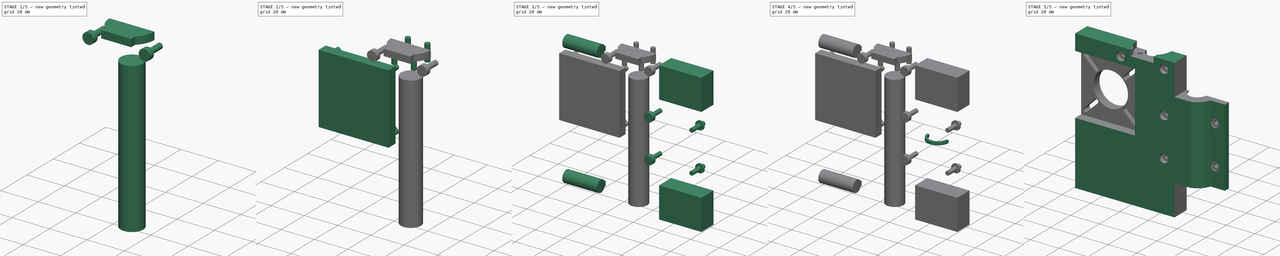
[diagram: build sequence overview — one tinted view per stage of 5, left to right]
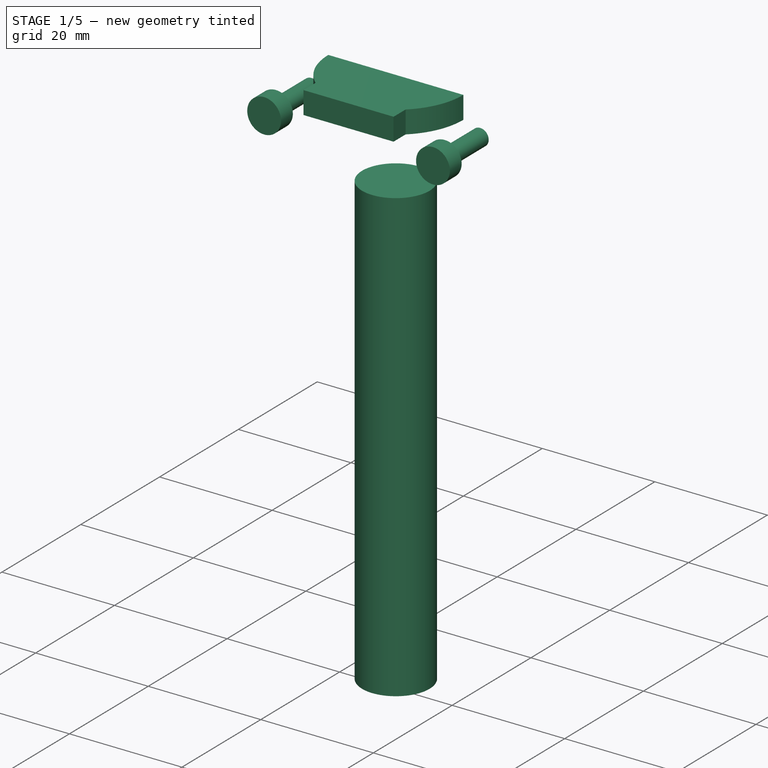
[diagram: stage 1 of 5 — iso view after this stage's code; geometry added in this stage tinted green]
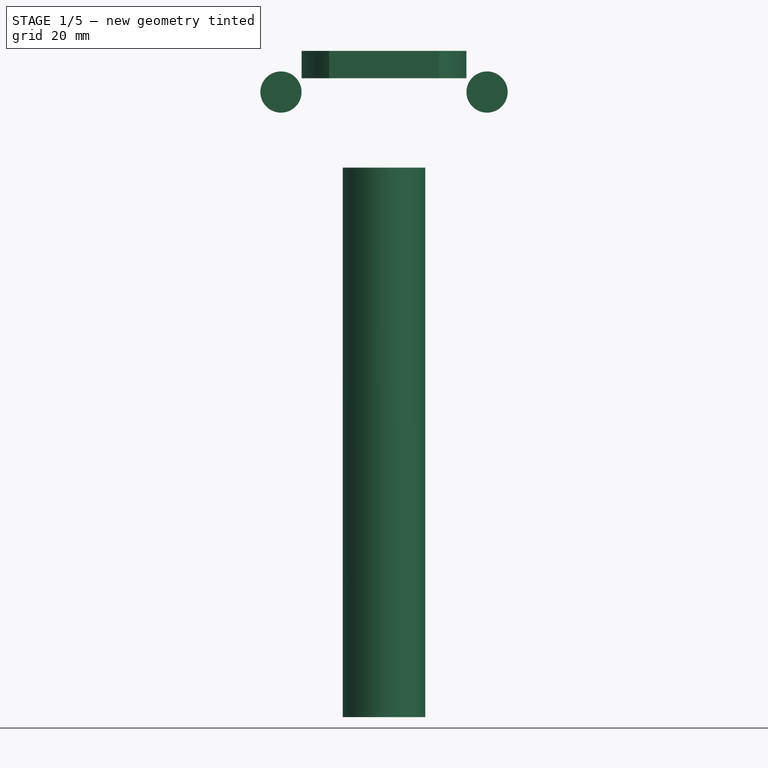
[diagram: stage 1 of 5 — front view after this stage's code; geometry added in this stage tinted green]
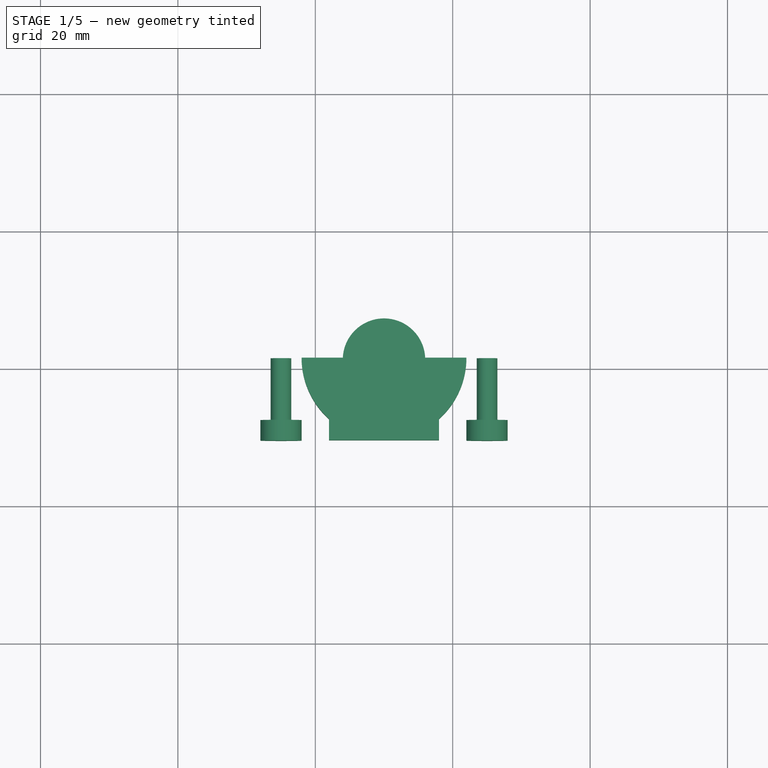
[diagram: stage 1 of 5 — top view after this stage's code; geometry added in this stage tinted green]
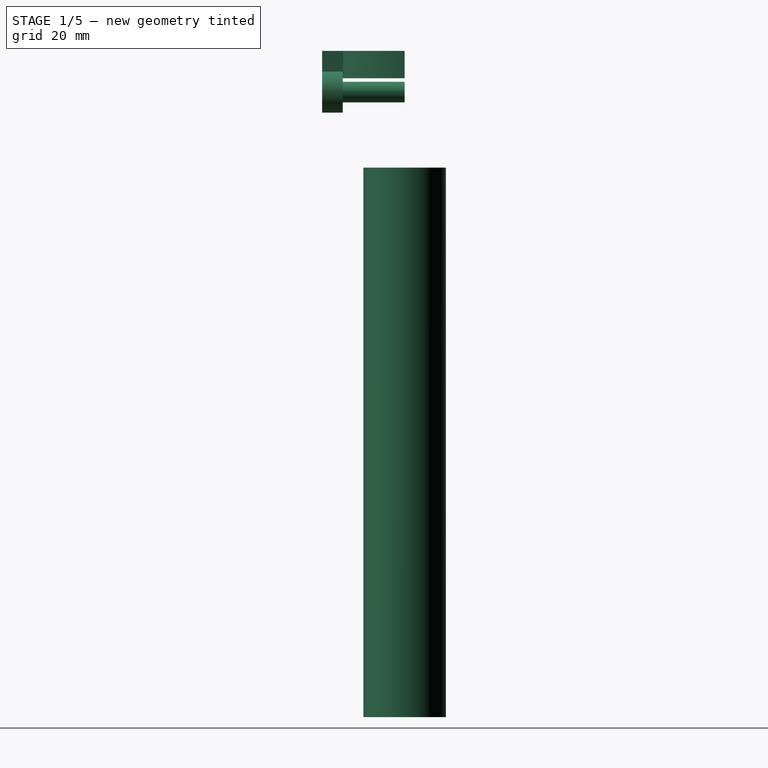
[diagram: stage 1 of 5 — right view after this stage's code; geometry added in this stage tinted green]
FCSTD DOCUMENT  (FreeCAD 0.16R6707 (Git))
Label: RightShoulder
License: All rights reserved
LicenseURL: http://en.wikipedia.org/wiki/All_rights_reserved
objects: Sketcher::SketchObject×15, PartDesign::Pad×15, Part::MultiFuse×2, Part::Cut×1
note: 48 computed .brp shape members not serialized (recipe doc carries the construction recipe); baked Part::Feature solids carry a one-line shape summary decoded from their .brp

FEATURE [Sketcher::SketchObject] Sketch015
  Placement = pos=(0,0,0) rot=(1,0,0;1.5708rad)
  sketch-geometry (2):
    g0: Circle CenterX=-45 CenterY=91 CenterZ=0 NormalX=0 NormalY=0 NormalZ=1 Radius=1.5
    g1: Circle CenterX=-15 CenterY=91 CenterZ=0 NormalX=0 NormalY=0 NormalZ=1 Radius=1.5
  constraints (6):
    c: Radius(g1) = 1.5
    c: Equal(g1,g0)
    c: DistanceX(g1,g-1) = 15
    c: DistanceX(g0,g1) = 30
    c: DistanceY(g-1,g1) = 91
    c: DistanceY(g0,g1) = 0
FEATURE [PartDesign::Pad] Pad012  label="LeadNutMount001"
  Length = 12
  Length2 = 100
  Placement = pos=(0,0,0) rot=(1,0,0;1.5708rad)
  Sketch = -> Sketch015
  Type = 0
FEATURE [Sketcher::SketchObject] Sketch016
  Placement = pos=(0,-12,0) rot=(1,0,0;1.5708rad)
  sketch-geometry (2):
    g0: Circle CenterX=-45 CenterY=91 CenterZ=0 NormalX=0 NormalY=0 NormalZ=1 Radius=3
    g1: Circle CenterX=-15 CenterY=91 CenterZ=0 NormalX=0 NormalY=0 NormalZ=1 Radius=3
  constraints (6):
    c: Radius(g0) = 3
    c: Equal(g0,g1)
    c: DistanceX(g0,g1) = 30
    c: DistanceX(g1,g-1) = 15
    c: DistanceY(g-1,g0) = 91
    c: DistanceY(g1,g0) = 0
FEATURE [PartDesign::Pad] Pad013  label="LeadNutFlush001"
  Length = 3
  Length2 = 100
  Placement = pos=(0,-12,0) rot=(1,0,0;1.5708rad)
  Reversed = true
  Sketch = -> Sketch016
  Type = 0
FEATURE [Sketcher::SketchObject] Sketch017
  sketch-geometry (1):
    g0: Circle CenterX=-30 CenterY=0 CenterZ=0 NormalX=0 NormalY=0 NormalZ=1 Radius=6
  constraints (3):
    c: DistanceX(g0,g-1) = 30
    c: PointOnObject(g0,g-1)
    c: Radius(g0) = 6
FEATURE [PartDesign::Pad] Pad014  label="LeadScrewTol"
  Length = 80
  Length2 = 100
  Sketch = -> Sketch017
  Type = 0
FEATURE [PartDesign::Pad] Pad015  label="LeadNutFlush"
  Length = 4
  Length2 = 100
  Placement = pos=(0,0,97) rot=(0,0,1;0rad)
  Reversed = true
  Sketch = -> Sketch013
  Type = 0
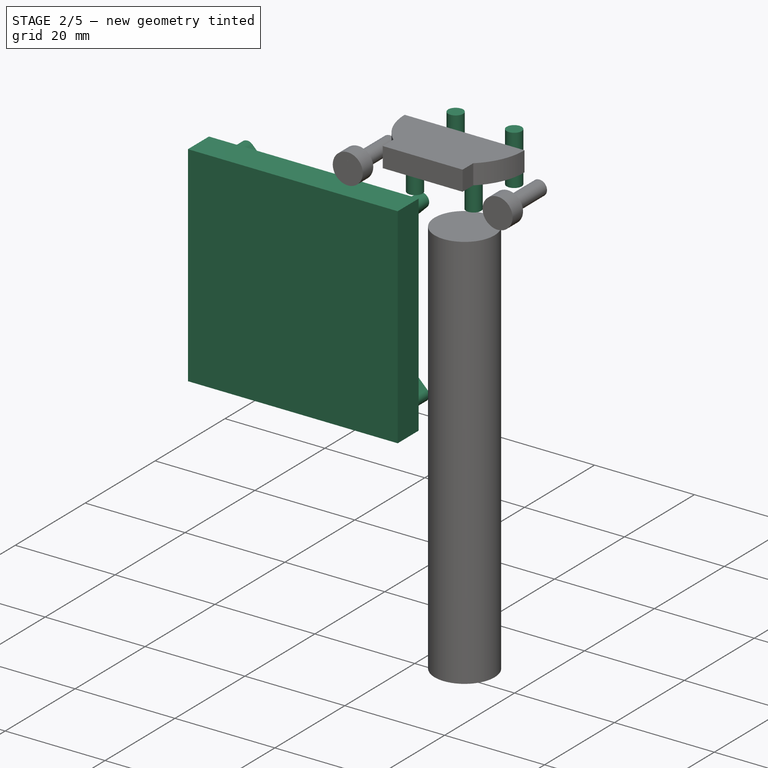
[diagram: stage 2 of 5 — iso view after this stage's code; geometry added in this stage tinted green]
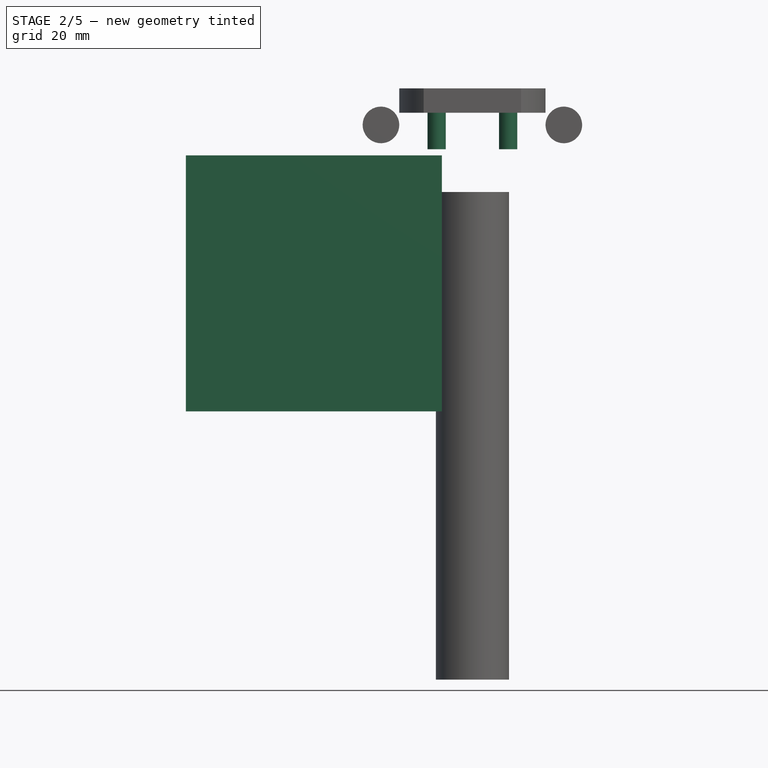
[diagram: stage 2 of 5 — front view after this stage's code; geometry added in this stage tinted green]
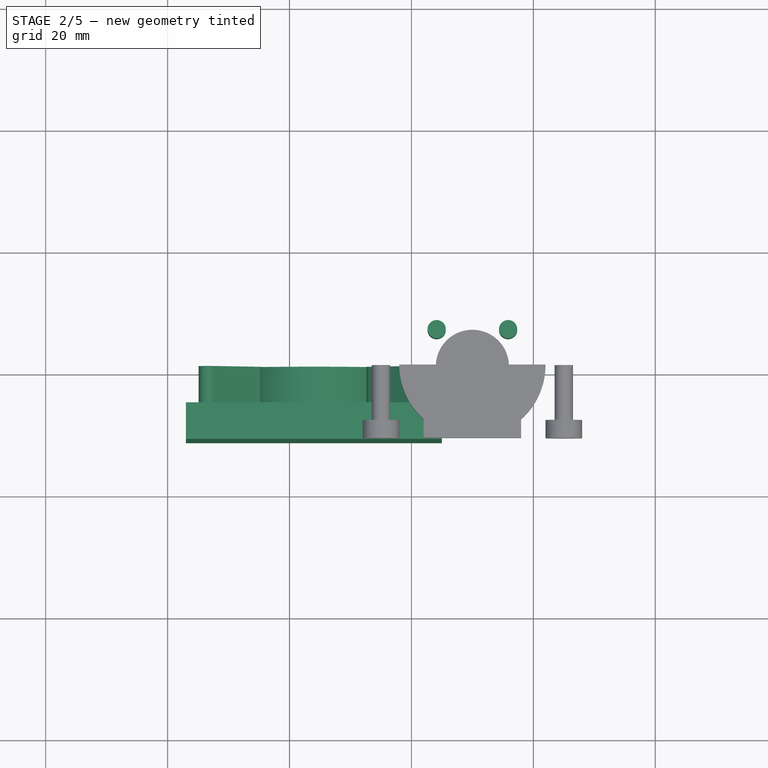
[diagram: stage 2 of 5 — top view after this stage's code; geometry added in this stage tinted green]
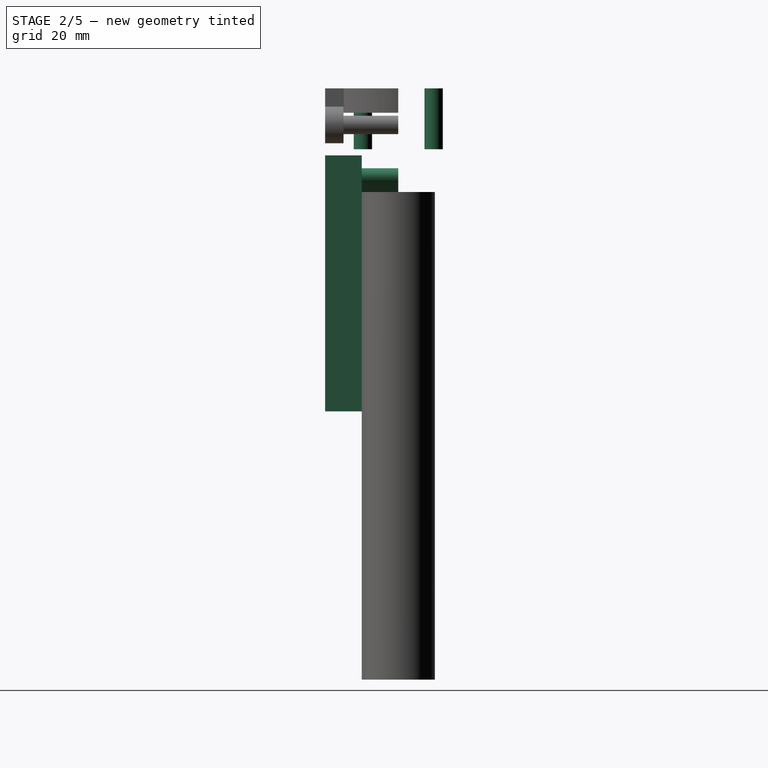
[diagram: stage 2 of 5 — right view after this stage's code; geometry added in this stage tinted green]
FEATURE [PartDesign::Pad] Pad008  label="NemaFlush"
  Length = 6
  Length2 = 100
  Placement = pos=(0,-12,0) rot=(1,0,0;1.5708rad)
  Reversed = true
  Sketch = -> Sketch011
  Type = 0
FEATURE [PartDesign::Pad] Pad009  label="NemaMount"
  Length = 8
  Length2 = 100
  Placement = pos=(0,-8,0) rot=(1,0,0;1.5708rad)
  Reversed = true
  Sketch = -> Sketch012
  Type = 0
FEATURE [Sketcher::SketchObject] Sketch013
  Placement = pos=(0,0,97) rot=(0,0,1;0rad)
  sketch-geometry (6):
    g0: ArcOfCircle CenterX=-30 CenterY=0 CenterZ=0 NormalX=0 NormalY=0 NormalZ=1 Radius=12 StartAngle=3.14159 EndAngle=3.98266
    g1: ArcOfCircle CenterX=-30 CenterY=0 CenterZ=0 NormalX=0 NormalY=0 NormalZ=1 Radius=12 StartAngle=5.44212 EndAngle=6.28319
    g2: LineSegment StartX=-38 StartY=-8.94427 StartZ=0 EndX=-38 EndY=-12 EndZ=0
    g3: LineSegment StartX=-38 StartY=-12 StartZ=0 EndX=-22 EndY=-12 EndZ=0
    g4: LineSegment StartX=-22 StartY=-12 StartZ=0 EndX=-22 EndY=-8.94427 EndZ=0
    g5: LineSegment StartX=-42 StartY=0 StartZ=0 EndX=-18 EndY=0 EndZ=0
  constraints (20):
    c: PointOnObject(g1,g-1)
    c: PointOnObject(g0,g-1)
    c: Coincident(g0,g1)
    c: PointOnObject(g0,g-1)
    c: DistanceX(g0,g-1) = 30
    c: Radius(g0) = 12
    c: Equal(g0,g1)
    c: DistanceY(g1,g0) = 0
    c: Vertical(g2)
    c: Coincident(g2,g3)
    c: Coincident(g3,g4)
    c: Vertical(g4)
    c: Horizontal(g3)
    c: Coincident(g2,g0)
    c: Coincident(g1,g4)
    c: DistanceY(g3,g1) = 12
    c: DistanceX(g3,g3) = 16
    c: Horizontal(g5)
    c: Coincident(g5,g1)
    c: Coincident(g5,g0)
FEATURE [Sketcher::SketchObject] Sketch014
  Placement = pos=(0,0,97) rot=(0,0,1;0rad)
  constraints (14):
    c: Radius(g1) = 1.5
    c: Equal(g1,g0)
    c: DistanceY(g1,g0) = 0
    c: DistanceY(g3,g2) = 0
    c: DistanceX(g2,g0) = 0
    c: Equal(g2,g3)
    c: Equal(g3,g0)
    c: Distance(g0,g3) = 16.5
    c: Symmetric(g3,g1,g-1)
    c: Vertical(g4)
    c: PointOnObject(g4,g-1)
    c: PointOnObject(g4,g-1)
    c: DistanceX(g4,g-1) = 30
    c: Symmetric(g3,g0,g4)
FEATURE [PartDesign::Pad] Pad011  label="LeadNutMount"
  Length = 10
  Length2 = 100
  Placement = pos=(0,0,97) rot=(0,0,1;0rad)
  Reversed = true
  Sketch = -> Sketch014
  Type = 0
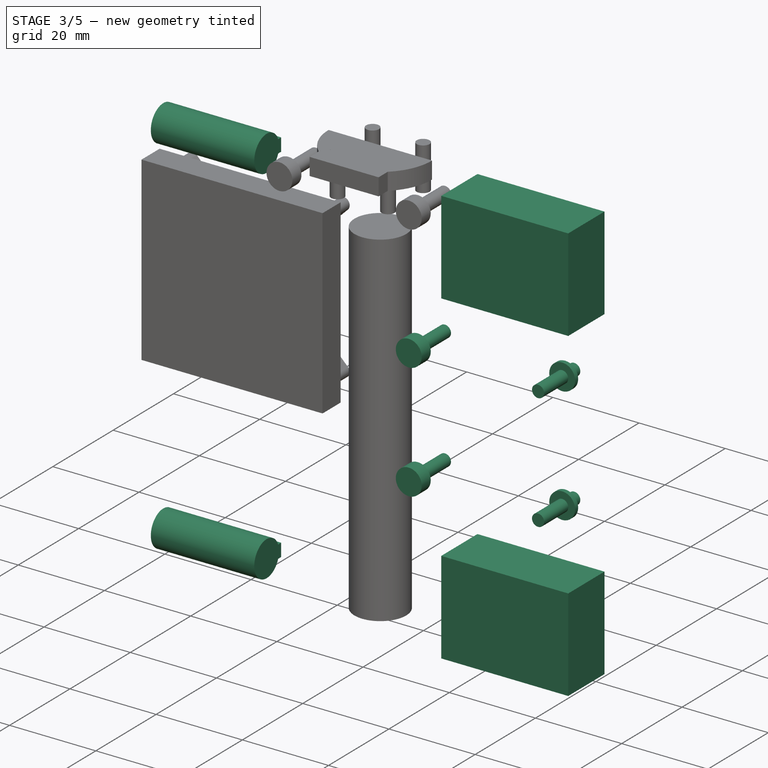
[diagram: stage 3 of 5 — iso view after this stage's code; geometry added in this stage tinted green]
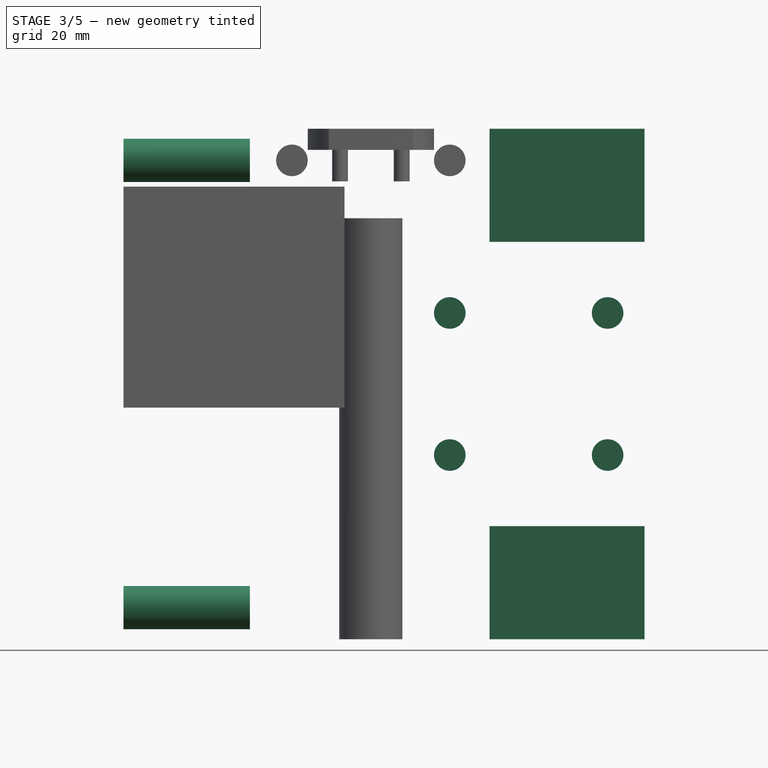
[diagram: stage 3 of 5 — front view after this stage's code; geometry added in this stage tinted green]
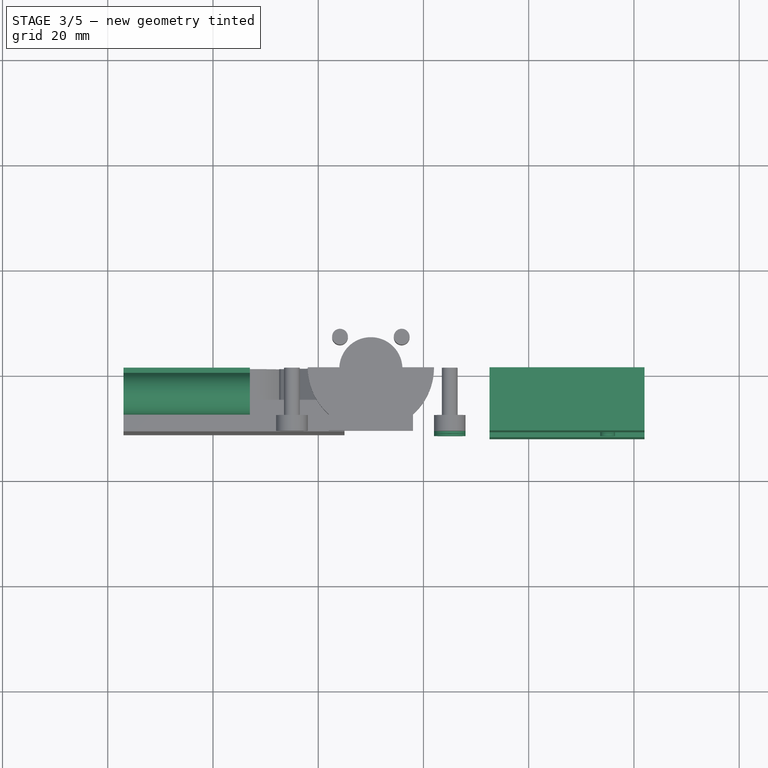
[diagram: stage 3 of 5 — top view after this stage's code; geometry added in this stage tinted green]
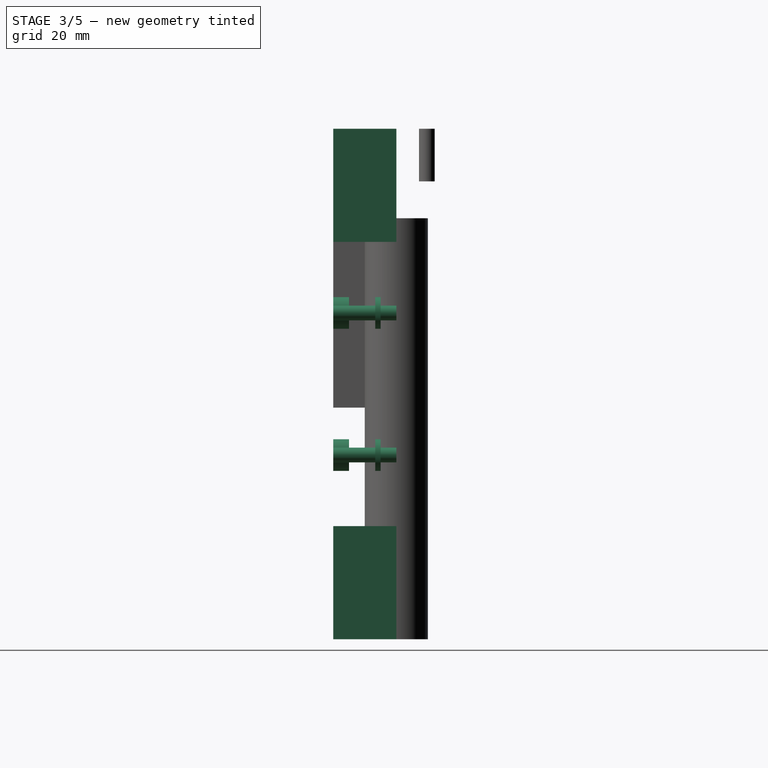
[diagram: stage 3 of 5 — right view after this stage's code; geometry added in this stage tinted green]
FEATURE [PartDesign::Pad] Pad004  label="BearingMount"
  Length = 12
  Length2 = 100
  Placement = pos=(0,0,0) rot=(0,0.707107,0.707107;3.14159rad)
  Reversed = true
  Sketch = -> Sketch001
  Type = 0
FEATURE [PartDesign::Pad] Pad005  label="RodMount"
  Length = 24
  Length2 = 100
  Placement = pos=(-77,0,0) rot=(0.57735,-0.57735,-0.57735;2.0944rad)
  Reversed = true
  Sketch = -> Sketch008
  Type = 0
FEATURE [PartDesign::Pad] Pad006  label="BearingFlush02"
  Length = 3
  Length2 = 100
  Placement = pos=(0,-12,0) rot=(1,0,0;1.5708rad)
  Reversed = true
  Sketch = -> Sketch009
  Type = 0
FEATURE [PartDesign::Pad] Pad007  label="BearingFlush01"
  Length = 1
  Length2 = 100
  Placement = pos=(0,-4,0) rot=(1,0,0;1.5708rad)
  Reversed = true
  Sketch = -> Sketch010
  Type = 0
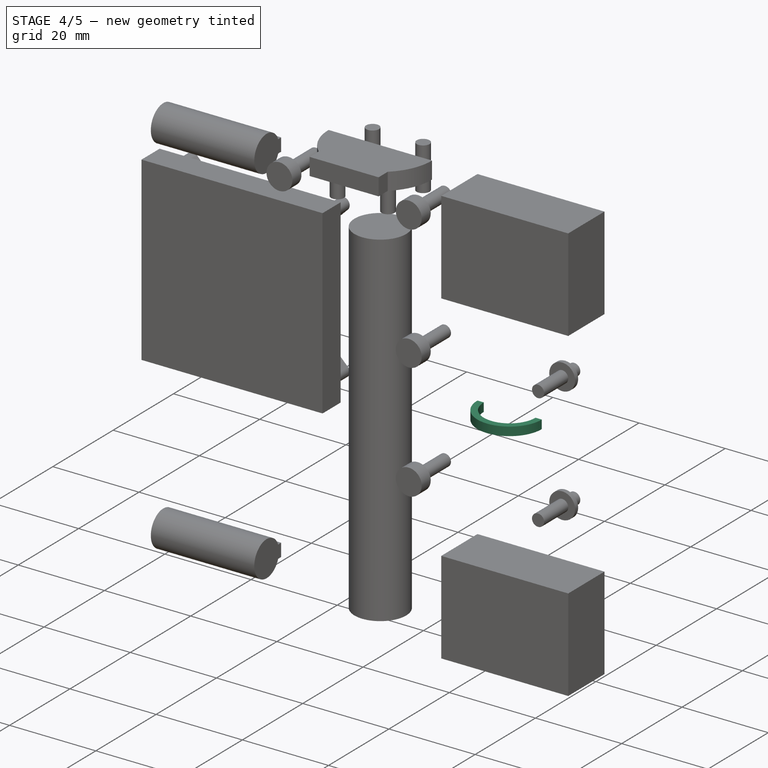
[diagram: stage 4 of 5 — iso view after this stage's code; geometry added in this stage tinted green]
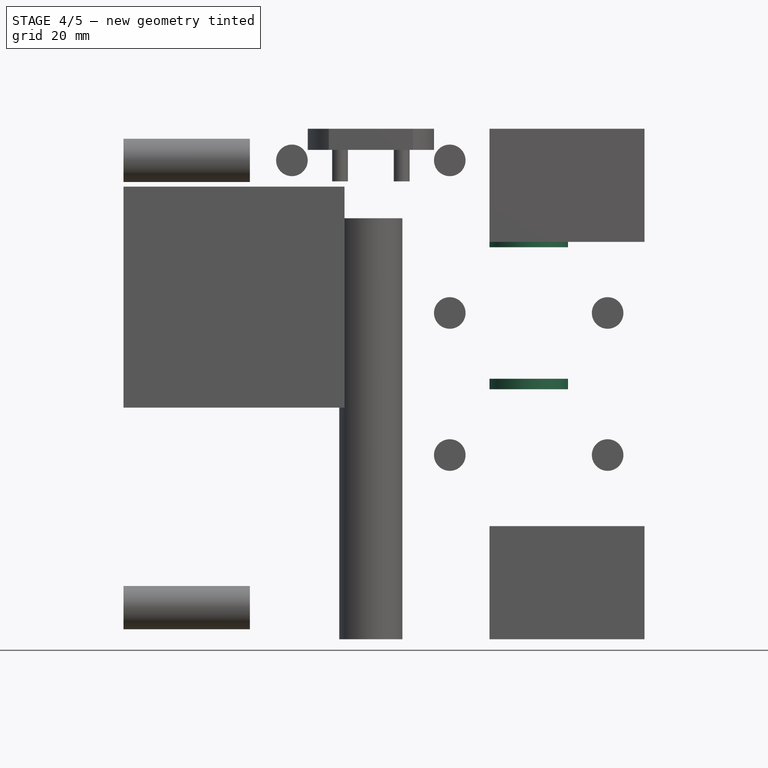
[diagram: stage 4 of 5 — front view after this stage's code; geometry added in this stage tinted green]
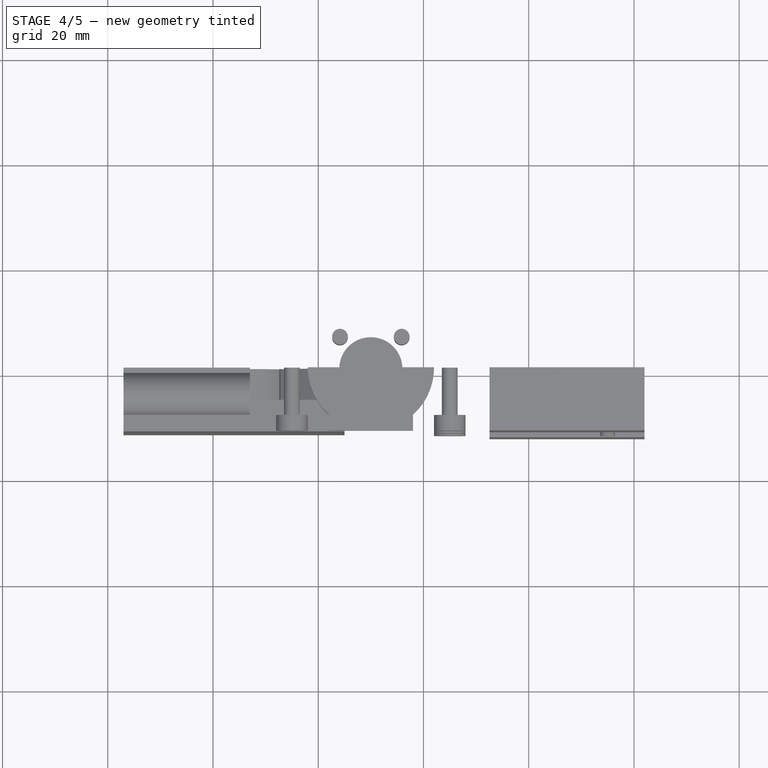
[diagram: stage 4 of 5 — top view after this stage's code; geometry added in this stage tinted green]
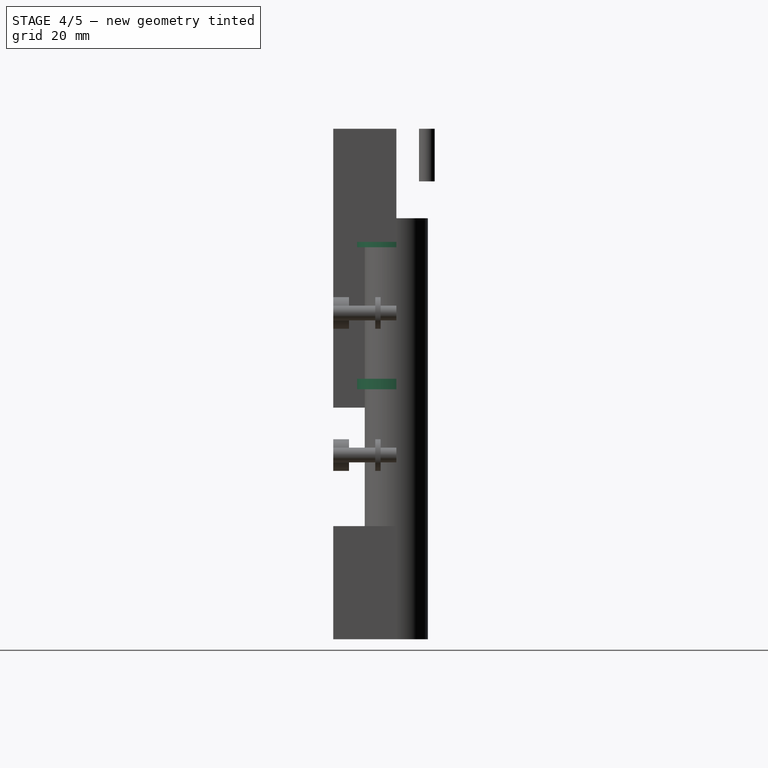
[diagram: stage 4 of 5 — right view after this stage's code; geometry added in this stage tinted green]
FEATURE [Sketcher::SketchObject] Sketch006
  Placement = pos=(0,0,47.5) rot=(0,0,1;3.14159rad)
  sketch-geometry (4):
    g0: ArcOfCircle CenterX=0 CenterY=0 CenterZ=0 NormalX=0 NormalY=0 NormalZ=1 Radius=7.46 StartAngle=0 EndAngle=3.14159
    g1: LineSegment StartX=-7.46 StartY=-2e-12 StartZ=0 EndX=-6 EndY=-2e-12 EndZ=0
    g2: LineSegment StartX=7.46 StartY=0 StartZ=0 EndX=6 EndY=0 EndZ=0
    g3: ArcOfCircle CenterX=0 CenterY=0 CenterZ=0 NormalX=0 NormalY=0 NormalZ=1 Radius=6 StartAngle=0 EndAngle=3.14159
  constraints (12):
    c: Coincident(g0,g-1)
    c: PointOnObject(g0,g-1)
    c: PointOnObject(g0,g-1)
    c: Horizontal(g1)
    c: Horizontal(g2)
    c: Coincident(g2,g0)
    c: Coincident(g1,g0)
    c: Coincident(g3,g-1)
    c: Coincident(g3,g1)
    c: Coincident(g3,g2)
    c: Radius(g0) = 7.46
    c: Radius(g3) = 6
FEATURE [Sketcher::SketchObject] Sketch007
  Placement = pos=(0,0,74.5) rot=(0,0,1;3.14159rad)
  sketch-geometry (4):
    g0: ArcOfCircle CenterX=0 CenterY=0 CenterZ=0 NormalX=0 NormalY=0 NormalZ=1 Radius=7.46 StartAngle=0 EndAngle=3.14159
    g1: LineSegment StartX=-7.46 StartY=-1e-12 StartZ=0 EndX=-6 EndY=-1e-12 EndZ=0
    g2: LineSegment StartX=7.46 StartY=0 StartZ=0 EndX=6 EndY=0 EndZ=0
    g3: ArcOfCircle CenterX=0 CenterY=0 CenterZ=0 NormalX=0 NormalY=0 NormalZ=1 Radius=6 StartAngle=0 EndAngle=3.14159
  constraints (12):
    c: Coincident(g0,g-1)
    c: PointOnObject(g0,g-1)
    c: PointOnObject(g0,g-1)
    c: Horizontal(g1)
    c: Horizontal(g2)
    c: Coincident(g2,g0)
    c: Coincident(g1,g0)
    c: Coincident(g3,g-1)
    c: Coincident(g3,g1)
    c: Coincident(g3,g2)
    c: Radius(g0) = 7.46
    c: Radius(g3) = 6
FEATURE [PartDesign::Pad] Pad002  label="BaseRing2"
  Length = 2
  Length2 = 100
  Placement = pos=(0,0,47.5) rot=(0,0,1;3.14159rad)
  Sketch = -> Sketch006
  Type = 0
FEATURE [PartDesign::Pad] Pad003  label="BaseRing1"
  Length = 1
  Length2 = 100
  Placement = pos=(0,0,74.5) rot=(0,0,1;3.14159rad)
  Sketch = -> Sketch007
  Type = 0
FEATURE [Part::MultiFuse] Fusion001  label="CutBlock"
  Shapes = -> [Pad015,Pad009,Pad012,Pad006,Pad007,Pad013,Pad008,Pad004,Pad014,Pad005,Pad011]
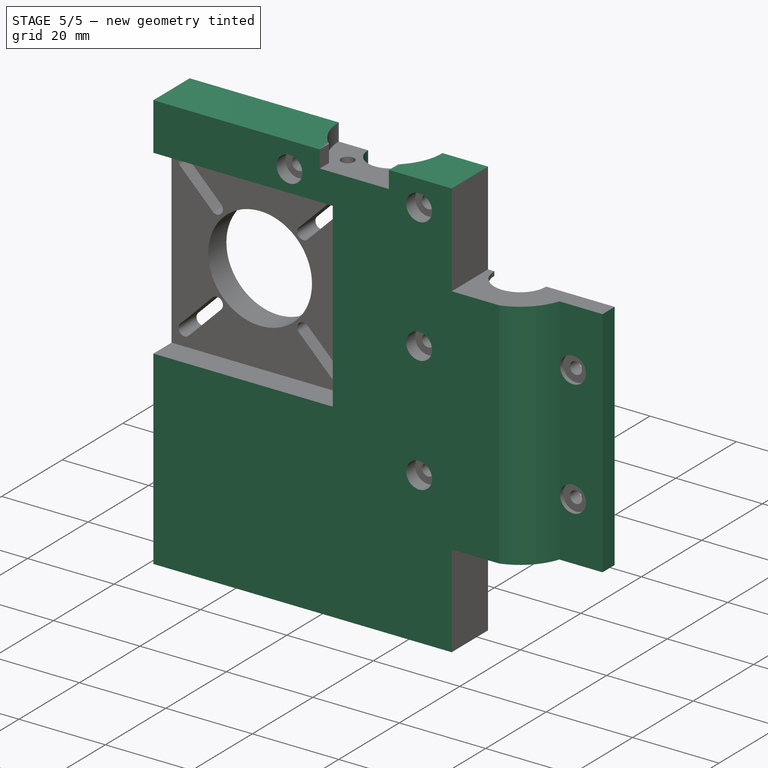
[diagram: stage 5 of 5 — iso view after this stage's code; geometry added in this stage tinted green]
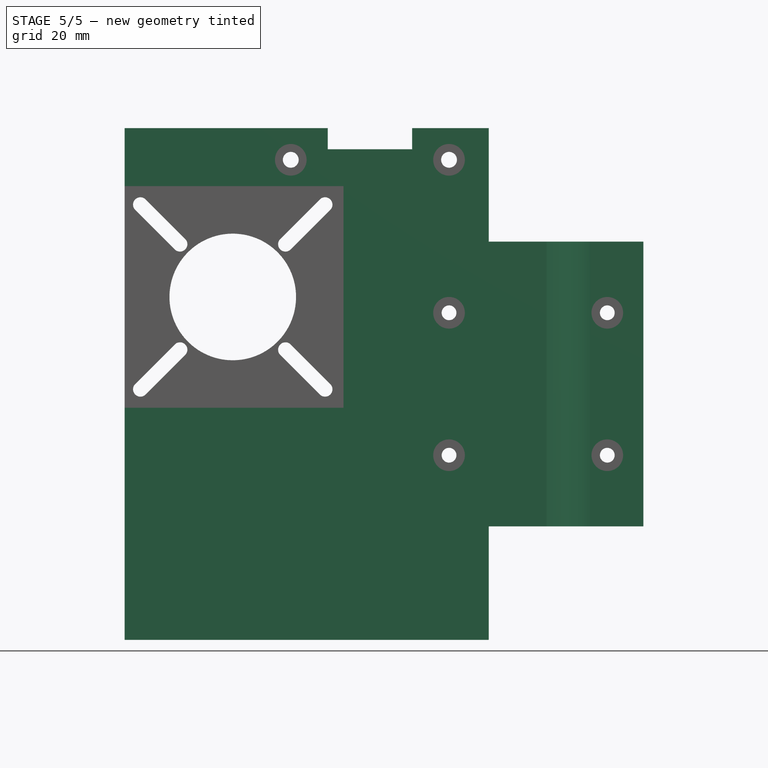
[diagram: stage 5 of 5 — front view after this stage's code; geometry added in this stage tinted green]
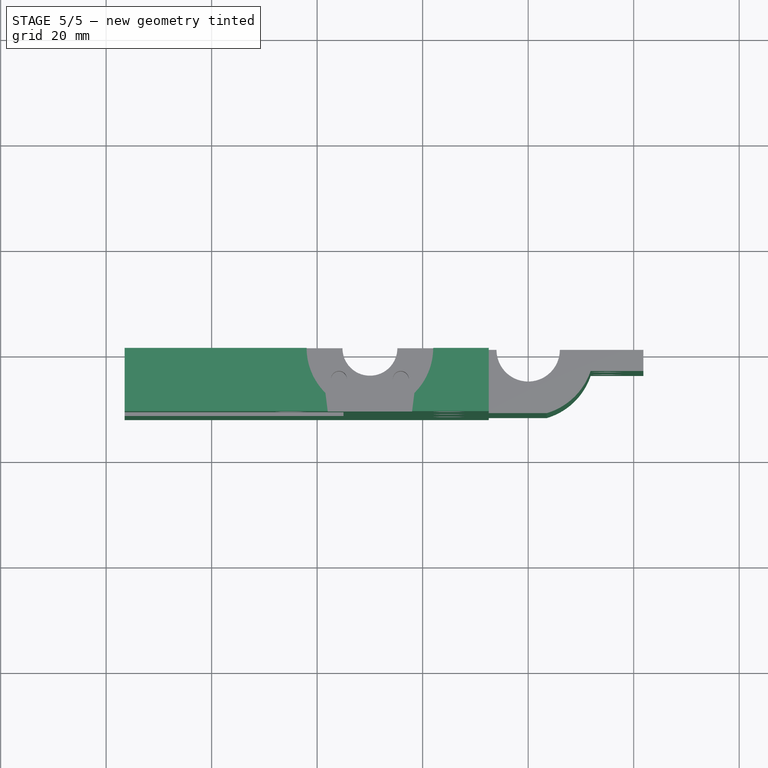
[diagram: stage 5 of 5 — top view after this stage's code; geometry added in this stage tinted green]
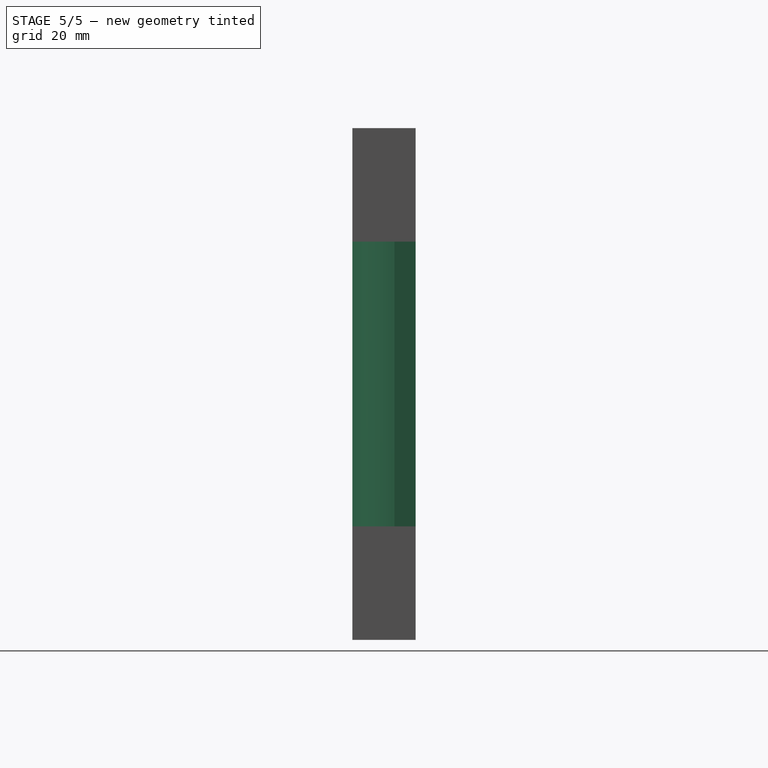
[diagram: stage 5 of 5 — right view after this stage's code; geometry added in this stage tinted green]
FEATURE [Sketcher::SketchObject] Sketch  label="BaseSK"
  sketch-geometry (10):
    g0: ArcOfCircle CenterX=0 CenterY=0 CenterZ=0 NormalX=0 NormalY=0 NormalZ=1 Radius=12.5 StartAngle=4.99618 EndAngle=5.95746
    g1: ArcOfCircle CenterX=0 CenterY=0 CenterZ=0 NormalX=0 NormalY=0 NormalZ=1 Radius=7.46 StartAngle=3.14159 EndAngle=6.28319
    g2: LineSegment StartX=11.8427 StartY=-4 StartZ=0 EndX=21.8427 EndY=-4 EndZ=0
    g3: LineSegment StartX=21.8427 StartY=-4 StartZ=0 EndX=21.8427 EndY=0 EndZ=0
    g4: LineSegment StartX=21.8427 StartY=0 StartZ=0 EndX=7.46 EndY=0 EndZ=0
    g5: LineSegment StartX=-76.5 StartY=0 StartZ=0 EndX=-76.5 EndY=-12 EndZ=0
    g6: LineSegment StartX=-76.5 StartY=-12 StartZ=0 EndX=3.5 EndY=-12 EndZ=0
    g7: LineSegment StartX=-76.5 StartY=0 StartZ=0 EndX=-35.2 EndY=0 EndZ=0
    g8: LineSegment StartX=-24.8 StartY=0 StartZ=0 EndX=-7.46 EndY=0 EndZ=0
    g9: ArcOfCircle CenterX=-30 CenterY=0 CenterZ=0 NormalX=0 NormalY=0 NormalZ=1 Radius=5.2 StartAngle=3.14159 EndAngle=6.28319
  constraints (31):
    c: Coincident(g0,g-1)
    c: Coincident(g1,g-1)
    c: PointOnObject(g1,g-1)
    c: PointOnObject(g1,g-1)
    c: Radius(g1) = 7.46
    c: Radius(g0) = 12.5
    c: Horizontal(g2)
    c: Coincident(g2,g3)
    c: Coincident(g3,g4)
    c: Horizontal(g4)
    c: Vertical(g3)
    c: DistanceY(g3,g3) = 4
    c: DistanceX(g2,g2) = 10
    c: Coincident(g2,g0)
    c: Coincident(g4,g1)
    c: Coincident(g5,g6)
    c: Coincident(g6,g0)
    c: Horizontal(g6)
    c: Vertical(g5)
    c: DistanceY(g5,g5) = 12
    c: Horizontal(g7)
    c: Horizontal(g8)
    c: Coincident(g8,g1)
    c: Coincident(g7,g5)
    c: Coincident(g9,g7)
    c: Coincident(g9,g8)
    c: PointOnObject(g9,g-1)
    c: Radius(g9) = 5.2
    c: DistanceX(g9,g-1) = 30
    c: DistanceX(g7,g7) = 41.3
    c: PointOnObject(g7,g-1)
FEATURE [PartDesign::Pad] Pad  label="Base"
  Length = 97
  Length2 = 100
  Sketch = -> Sketch
  Type = 0
FEATURE [Sketcher::SketchObject] Sketch001
  Placement = pos=(0,0,0) rot=(0,0.707107,0.707107;3.14159rad)
  sketch-geometry (12):
    g0: LineSegment StartX=7.46 StartY=0 StartZ=0 EndX=-22 EndY=0 EndZ=0
    g1: LineSegment StartX=-22 StartY=0 StartZ=0 EndX=-22 EndY=21.5 EndZ=0
    g2: LineSegment StartX=-22 StartY=21.5 StartZ=0 EndX=7.46 EndY=21.5 EndZ=0
    g3: LineSegment StartX=7.46 StartY=21.5 StartZ=0 EndX=7.46 EndY=0 EndZ=0
    g4: LineSegment StartX=7.46 StartY=75.5 StartZ=0 EndX=-22 EndY=75.5 EndZ=0
    g5: LineSegment StartX=-22 StartY=75.5 StartZ=0 EndX=-22 EndY=97 EndZ=0
    g6: LineSegment StartX=-22 StartY=97 StartZ=0 EndX=7.46 EndY=97 EndZ=0
    g7: LineSegment StartX=7.46 StartY=97 StartZ=0 EndX=7.46 EndY=75.5 EndZ=0
    g8: Circle CenterX=15 CenterY=62 CenterZ=0 NormalX=0 NormalY=0 NormalZ=1 Radius=1.4
    g9: Circle CenterX=15 CenterY=35 CenterZ=0 NormalX=0 NormalY=0 NormalZ=1 Radius=1.4
    g10: Circle CenterX=-15 CenterY=62 CenterZ=0 NormalX=0 NormalY=0 NormalZ=1 Radius=1.4
    g11: Circle CenterX=-15 CenterY=35 CenterZ=0 NormalX=0 NormalY=0 NormalZ=1 Radius=1.4
  constraints (36):
    c: Coincident(g0,g1)
    c: Coincident(g1,g2)
    c: Coincident(g2,g3)
    c: Coincident(g3,g0)
    c: Horizontal(g0)
    c: Horizontal(g2)
    c: Vertical(g1)
    c: Vertical(g3)
    c: PointOnObject(g0,g-1)
    c: DistanceX(g0,g-1) = 22
    c: DistanceX(g-1,g0) = 7.46
    c: DistanceY(g3,g3) = 21.5
    c: Coincident(g4,g5)
    c: Coincident(g5,g6)
    c: Coincident(g6,g7)
    c: Coincident(g7,g4)
    c: Horizontal(g4)
    c: Horizontal(g6)
    c: Vertical(g5)
    c: Vertical(g7)
    c: DistanceX(g4,g1) = 0
    c: DistanceY(g0,g4) = 75.5
    c: DistanceX(g2,g4) = 0
    c: DistanceY(g4,g5) = 21.5
    c: DistanceX(g10,g8) = 30
    c: DistanceX(g9,g8) = 0
    c: DistanceX(g10,g11) = 0
    c: DistanceY(g9,g11) = 0
    c: Radius(g8) = 1.4
    c: Equal(g8,g9)
    c: Equal(g8,g11)
    c: Equal(g8,g10)
    c: DistanceY(g0,g9) = 35
    c: DistanceY(g11,g10) = 27
    c: DistanceX(g11,g-1) = 15
    c: DistanceY(g8,g10) = 0
FEATURE [Sketcher::SketchObject] Sketch005
  Placement = pos=(0,0,21.5) rot=(0,0,1;3.14159rad)
  sketch-geometry (4):
    g0: ArcOfCircle CenterX=0 CenterY=0 CenterZ=0 NormalX=0 NormalY=0 NormalZ=1 Radius=7.46 StartAngle=0 EndAngle=3.14159
    g1: LineSegment StartX=-7.46 StartY=-2e-12 StartZ=0 EndX=-6 EndY=-2e-12 EndZ=0
    g2: LineSegment StartX=7.46 StartY=0 StartZ=0 EndX=6 EndY=0 EndZ=0
    g3: ArcOfCircle CenterX=0 CenterY=0 CenterZ=0 NormalX=0 NormalY=0 NormalZ=1 Radius=6 StartAngle=0 EndAngle=3.14159
  constraints (12):
    c: Coincident(g0,g-1)
    c: PointOnObject(g0,g-1)
    c: PointOnObject(g0,g-1)
    c: Horizontal(g1)
    c: Horizontal(g2)
    c: Coincident(g2,g0)
    c: Coincident(g1,g0)
    c: Coincident(g3,g-1)
    c: Coincident(g3,g1)
    c: Coincident(g3,g2)
    c: Radius(g0) = 7.46
    c: Radius(g3) = 6
FEATURE [PartDesign::Pad] Pad001  label="BaseRing3"
  Length = 1
  Length2 = 100
  Placement = pos=(0,0,21.5) rot=(0,0,1;3.14159rad)
  Sketch = -> Sketch005
  Type = 0
FEATURE [Sketcher::SketchObject] Sketch008
  Placement = pos=(-77,0,0) rot=(0.57735,-0.57735,-0.57735;2.0944rad)
  sketch-geometry (8):
    g0: ArcOfCircle CenterX=4.81576 CenterY=6 CenterZ=0 NormalX=0 NormalY=0 NormalZ=1 Radius=4.1 StartAngle=3.51614 EndAngle=9.05023
    g1: ArcOfCircle CenterX=4.81576 CenterY=91 CenterZ=0 NormalX=0 NormalY=0 NormalZ=1 Radius=4.1 StartAngle=3.51614 EndAngle=9.05023
    g2: LineSegment StartX=1 StartY=92.5 StartZ=0 EndX=0 EndY=92.5 EndZ=0
    g3: LineSegment StartX=0 StartY=92.5 StartZ=0 EndX=0 EndY=89.5 EndZ=0
    g4: LineSegment StartX=0 StartY=89.5 StartZ=0 EndX=1 EndY=89.5 EndZ=0
    g5: LineSegment StartX=1 StartY=7.5 StartZ=0 EndX=0 EndY=7.5 EndZ=0
    g6: LineSegment StartX=0 StartY=7.5 StartZ=0 EndX=0 EndY=4.5 EndZ=0
    g7: LineSegment StartX=0 StartY=4.5 StartZ=0 EndX=1 EndY=4.5 EndZ=0
  constraints (26):
    c: Horizontal(g2)
    c: Coincident(g2,g3)
    c: Coincident(g3,g4)
    c: Coincident(g5,g6)
    c: Vertical(g6)
    c: Coincident(g6,g7)
    c: Horizontal(g7)
    c: Horizontal(g5)
    c: Horizontal(g4)
    c: Equal(g2,g4)
    c: Equal(g4,g5)
    c: Equal(g5,g7)
    c: DistanceX(g2,g2) = 1
    c: Vertical(g3)
    c: DistanceY(g3,g3) = 3
    c: Coincident(g2,g1)
    c: Coincident(g4,g1)
    c: Coincident(g5,g0)
    c: Coincident(g7,g0)
    c: Equal(g6,g3)
    c: Radius(g0) = 4.1
    c: Equal(g0,g1)
    c: DistanceX(g6,g3) = 0
    c: DistanceX(g-1,g6) = 0
    c: DistanceY(g-1,g0) = 6
    c: DistanceY(g0,g1) = 85
FEATURE [Sketcher::SketchObject] Sketch009
  Placement = pos=(0,-12,0) rot=(1,0,0;1.5708rad)
  sketch-geometry (2):
    g0: Circle CenterX=-15 CenterY=62 CenterZ=0 NormalX=0 NormalY=0 NormalZ=1 Radius=3
    g1: Circle CenterX=-15 CenterY=35 CenterZ=0 NormalX=0 NormalY=0 NormalZ=1 Radius=3
  constraints (6):
    c: Radius(g1) = 3
    c: Equal(g1,g0)
    c: DistanceY(g1,g0) = 27
    c: DistanceX(g1,g0) = 0
    c: DistanceX(g1,g-1) = 15
    c: DistanceY(g-1,g1) = 35
FEATURE [Sketcher::SketchObject] Sketch010
  Placement = pos=(0,-4,0) rot=(1,0,0;1.5708rad)
  sketch-geometry (2):
    g0: Circle CenterX=15 CenterY=62 CenterZ=0 NormalX=0 NormalY=0 NormalZ=1 Radius=3
    g1: Circle CenterX=15 CenterY=35 CenterZ=0 NormalX=0 NormalY=0 NormalZ=1 Radius=3
  constraints (6):
    c: DistanceY(g1,g0) = 27
    c: DistanceX(g0,g1) = 0
    c: Radius(g0) = 3
    c: Equal(g0,g1)
    c: DistanceX(g-1,g1) = 15
    c: DistanceY(g-1,g1) = 35
FEATURE [Sketcher::SketchObject] Sketch011
  Placement = pos=(0,-12,0) rot=(1,0,0;1.5708rad)
  sketch-geometry (4):
    g0: LineSegment StartX=-77 StartY=86 StartZ=0 EndX=-35 EndY=86 EndZ=0
    g1: LineSegment StartX=-35 StartY=86 StartZ=0 EndX=-35 EndY=44 EndZ=0
    g2: LineSegment StartX=-35 StartY=44 StartZ=0 EndX=-77 EndY=44 EndZ=0
    g3: LineSegment StartX=-77 StartY=44 StartZ=0 EndX=-77 EndY=86 EndZ=0
  constraints (12):
    c: Coincident(g0,g1)
    c: Coincident(g1,g2)
    c: Coincident(g2,g3)
    c: Coincident(g3,g0)
    c: Horizontal(g0)
    c: Horizontal(g2)
    c: Vertical(g1)
    c: Vertical(g3)
    c: DistanceX(g2,g-1) = 77
    c: DistanceY(g3,g3) = 42
    c: DistanceX(g0,g0) = 42
    c: DistanceY(g-1,g2) = 44
FEATURE [Sketcher::SketchObject] Sketch012
  Placement = pos=(0,-8,0) rot=(1,0,0;1.5708rad)
  sketch-geometry (17):
    g0: Circle CenterX=-56 CenterY=65 CenterZ=0 NormalX=0 NormalY=0 NormalZ=1 Radius=12
    g1: ArcOfCircle CenterX=-38.5 CenterY=82.5 CenterZ=0 NormalX=0 NormalY=0 NormalZ=1 Radius=1.4 StartAngle=5.49779 EndAngle=8.63938
    g2: ArcOfCircle CenterX=-46 CenterY=75 CenterZ=0 NormalX=0 NormalY=0 NormalZ=1 Radius=1.4 StartAngle=2.35619 EndAngle=5.49779
    g3: ArcOfCircle CenterX=-38.5 CenterY=47.5 CenterZ=0 NormalX=0 NormalY=0 NormalZ=1 Radius=1.4 StartAngle=3.92699 EndAngle=7.06858
    g4: ArcOfCircle CenterX=-46 CenterY=55 CenterZ=0 NormalX=0 NormalY=0 NormalZ=1 Radius=1.4 StartAngle=0.785397 EndAngle=3.92699
    g5: ArcOfCircle CenterX=-73.5 CenterY=47.5 CenterZ=0 NormalX=0 NormalY=0 NormalZ=1 Radius=1.4 StartAngle=2.35619 EndAngle=5.49779
    g6: ArcOfCircle CenterX=-66 CenterY=55 CenterZ=0 NormalX=0 NormalY=0 NormalZ=1 Radius=1.4 StartAngle=5.49778 EndAngle=8.63939
    g7: ArcOfCircle CenterX=-73.5 CenterY=82.5 CenterZ=0 NormalX=0 NormalY=0 NormalZ=1 Radius=1.4 StartAngle=0.785399 EndAngle=3.92699
    g8: ArcOfCircle CenterX=-66 CenterY=75 CenterZ=0 NormalX=0 NormalY=0 NormalZ=1 Radius=1.4 StartAngle=3.92699 EndAngle=7.06858
    g9: LineSegment StartX=-72.5101 StartY=83.49 StartZ=0 EndX=-65.01 EndY=75.9899 EndZ=0
    g10: LineSegment StartX=-74.4899 StartY=81.51 StartZ=0 EndX=-66.9899 EndY=74.01 EndZ=0
    g11: LineSegment StartX=-46.9899 StartY=75.9899 StartZ=0 EndX=-39.4899 EndY=83.4899 EndZ=0
    g12: LineSegment StartX=-45.0101 StartY=74.0101 StartZ=0 EndX=-37.5101 EndY=81.5101 EndZ=0
    g13: LineSegment StartX=-45.01 StartY=55.9899 StartZ=0 EndX=-37.5101 EndY=48.4899 EndZ=0
    g14: LineSegment StartX=-46.9899 StartY=54.01 StartZ=0 EndX=-39.4899 EndY=46.5101 EndZ=0
    g15: LineSegment StartX=-74.4899 StartY=48.4899 StartZ=0 EndX=-66.99 EndY=55.9899 EndZ=0
    g16: LineSegment StartX=-72.5101 StartY=46.5101 StartZ=0 EndX=-65.0101 EndY=54.01 EndZ=0
  constraints (59):
    c: Coincident(g16,g6)
    c: Coincident(g16,g5)
    c: Coincident(g15,g5)
    c: Coincident(g15,g6)
    c: Coincident(g14,g4)
    c: Coincident(g14,g3)
    c: Coincident(g13,g3)
    c: Coincident(g13,g4)
    c: Coincident(g12,g1)
    c: Coincident(g12,g2)
    c: Coincident(g2,g11)
    c: Coincident(g11,g1)
    c: Coincident(g9,g8)
    c: Coincident(g9,g7)
    c: Coincident(g10,g7)
    c: Coincident(g10,g8)
    c: Parallel(g10,g9)
    c: Parallel(g9,g14)
    c: Parallel(g14,g13)
    c: Parallel(g11,g12)
    c: Parallel(g12,g16)
    c: Parallel(g16,g15)
    c: Radius(g5) = 1.4
    c: Equal(g5,g6)
    c: Equal(g5,g7)
    c: Equal(g5,g8)
    c: Equal(g5,g1)
    c: Equal(g5,g2)
    c: Equal(g5,g3)
    c: Tangent(g8,g10)
    c: Tangent(g10,g7)
    c: Tangent(g7,g9)
    c: DistanceY(g7,g1) = 0
    c: DistanceY(g2,g8) = 0
    c: DistanceY(g6,g4) = 0
    c: DistanceY(g5,g3) = 0
    c: DistanceX(g8,g6) = 0
    c: DistanceX(g7,g5) = 0
    c: DistanceX(g2,g4) = 0
    c: DistanceX(g1,g3) = 0
    c: Tangent(g11,g1)
    c: Tangent(g12,g1)
    c: Tangent(g12,g2)
    c: Tangent(g15,g6)
    c: Tangent(g15,g5)
    c: Tangent(g13,g4)
    c: Tangent(g14,g4)
    c: Tangent(g16,g5)
    c: DistanceX(g8,g2) = 20
    c: DistanceY(g6,g8) = 20
    c: DistanceX(g7,g1) = 35
    c: DistanceX(g0,g-1) = 56
    c: DistanceY(g-1,g0) = 65
    c: DistanceX(g6,g0) = 10
    c: DistanceY(g6,g0) = 10
    c: DistanceY(g5,g7) = 35
    c: Equal(g4,g2)
    c: Tangent(g14,g3)
    c: Radius(g0) = 12
FEATURE [Part::MultiFuse] Fusion  label="BaseBlock"
  Shapes = -> [Pad001,Pad002,Pad003,Pad]
FEATURE [Part::Cut] Cut  label="Final"
  Base = -> Fusion
  Tool = -> Fusion001
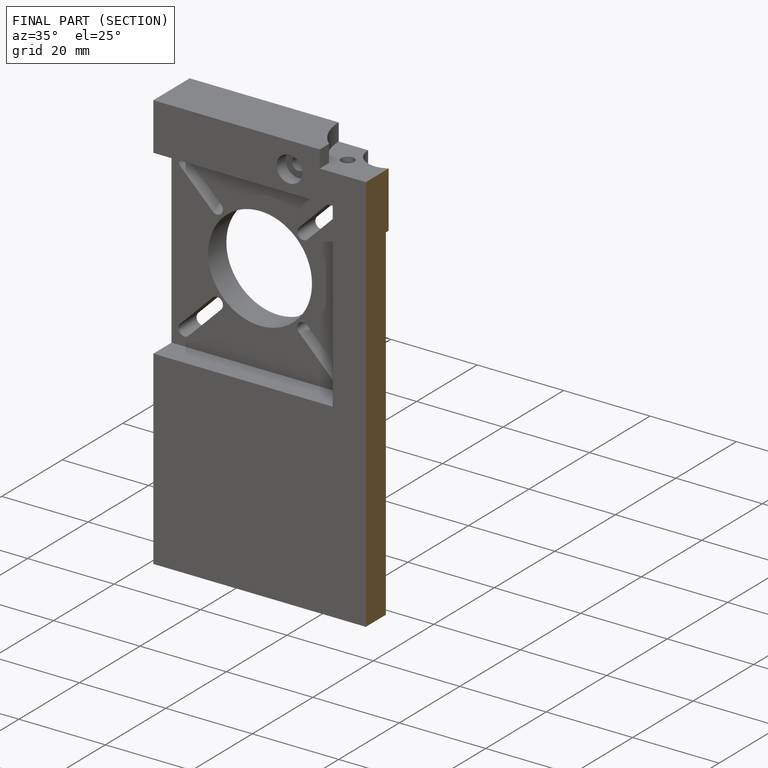
[diagram: finished part — half-section view (interior)]
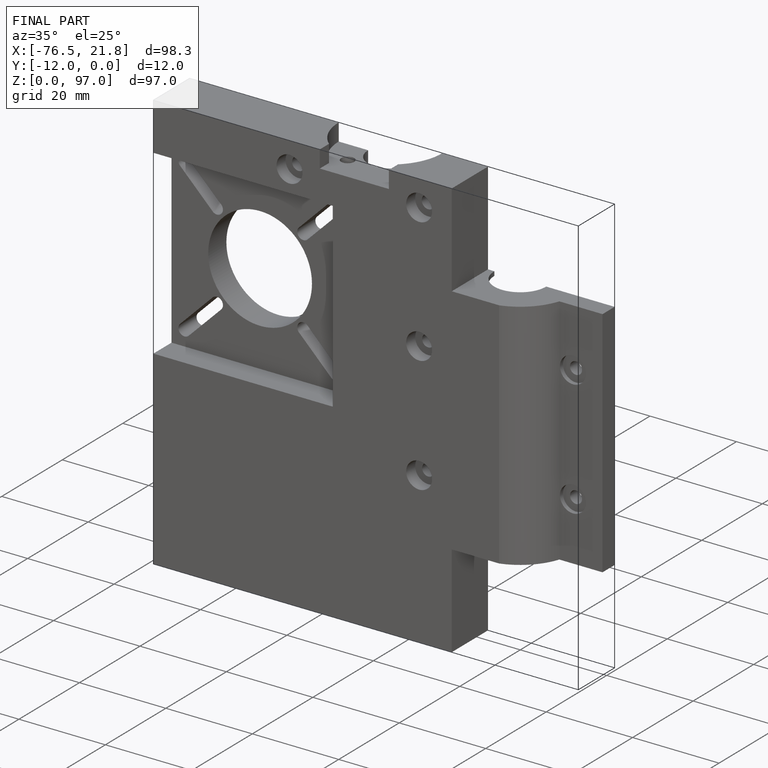
[diagram: finished part — iso view with bounding-box wireframe]
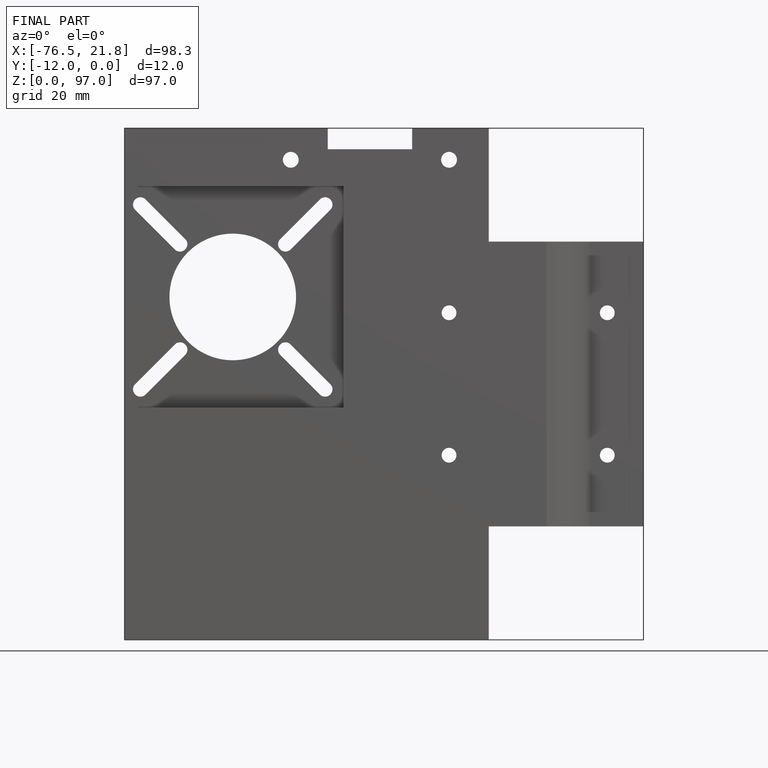
[diagram: finished part — front view with bounding-box wireframe]
